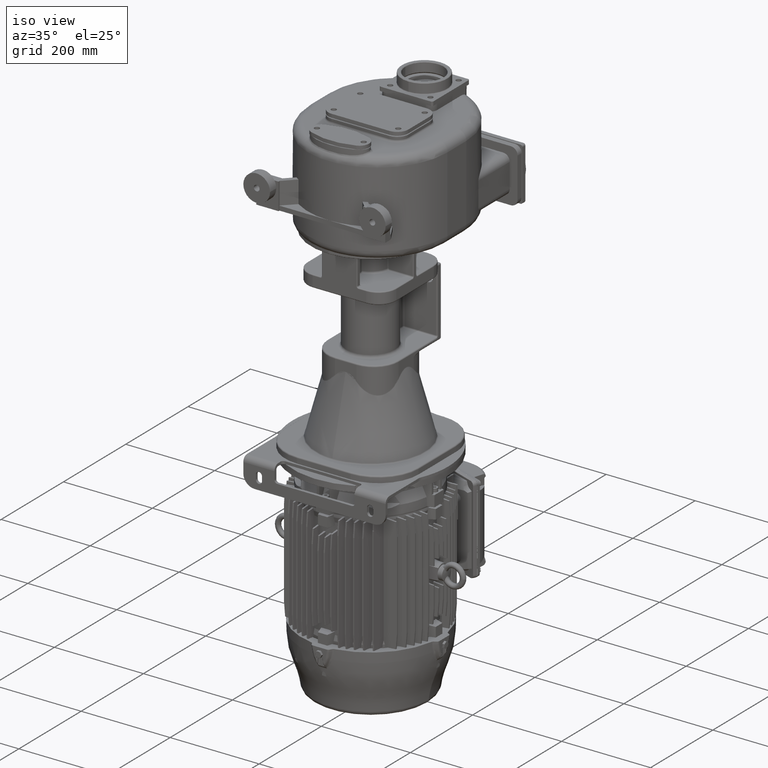
[diagram: clean part render]
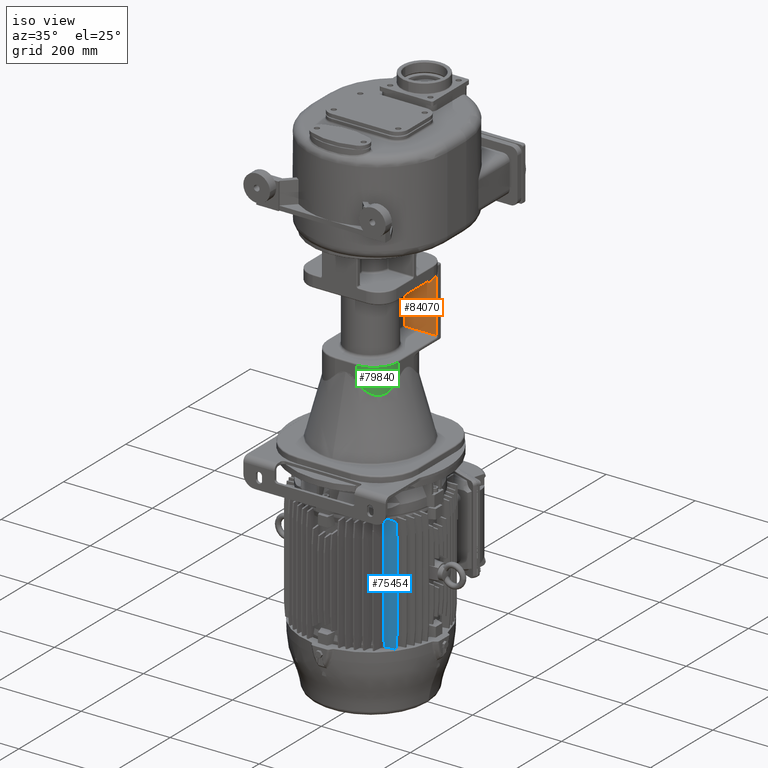
[diagram: same view with three faces highlighted in distinct colors, each labeled with its STEP entity id]
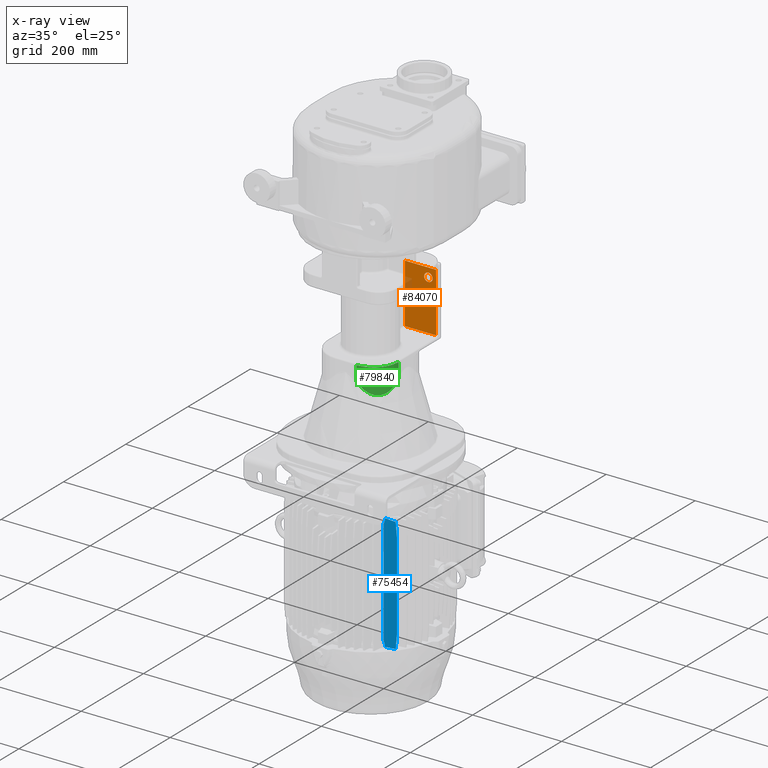
[diagram: x-ray of the same camera — body ghosted, the three highlighted faces saturated]
A machine part, iso view with three faces highlighted in distinct colors.
The next image is the same camera in x-ray (body ghosted, the three faces saturated) — at least one of them is partly hidden behind the body in this view.
Their STEP definitions:

[orange] entity #84070 — the highlighted planar face has unit normal (0, 1, 0).
#26449=DIRECTION('',(0.E0,0.E0,1.E0));
#26450=VECTOR('',#26449,1.33E2);
#26451=CARTESIAN_POINT('',(7.E0,2.58E2,-3.505E2));
#26452=LINE('',#26451,#26450);
#26453=DIRECTION('',(-1.E0,0.E0,0.E0));
#26454=VECTOR('',#26453,7.E1);
#26455=CARTESIAN_POINT('',(7.7E1,2.58E2,-2.175E2));
#26456=LINE('',#26455,#26454);
#26457=DIRECTION('',(0.E0,0.E0,1.E0));
#26458=VECTOR('',#26457,1.33E2);
#26459=CARTESIAN_POINT('',(7.7E1,2.58E2,-3.505E2));
#26460=LINE('',#26459,#26458);
#26461=DIRECTION('',(1.E0,0.E0,0.E0));
#26462=VECTOR('',#26461,7.E1);
#26463=CARTESIAN_POINT('',(7.E0,2.58E2,-3.505E2));
#26464=LINE('',#26463,#26462);
#26465=CARTESIAN_POINT('',(6.E1,2.58E2,-2.375E2));
#26466=DIRECTION('',(0.E0,1.E0,0.E0));
#26467=DIRECTION('',(0.E0,0.E0,1.E0));
#26468=AXIS2_PLACEMENT_3D('',#26465,#26466,#26467);
#26470=CARTESIAN_POINT('',(6.E1,2.58E2,-2.375E2));
#26471=DIRECTION('',(0.E0,1.E0,0.E0));
#26472=DIRECTION('',(0.E0,0.E0,-1.E0));
#26473=AXIS2_PLACEMENT_3D('',#26470,#26471,#26472);
#46279=CARTESIAN_POINT('',(7.7E1,2.58E2,-3.505E2));
#46280=CARTESIAN_POINT('',(7.7E1,2.58E2,-2.175E2));
#46281=VERTEX_POINT('',#46279);
#46282=VERTEX_POINT('',#46280);
#46287=CARTESIAN_POINT('',(7.E0,2.58E2,-3.505E2));
#46288=CARTESIAN_POINT('',(7.E0,2.58E2,-2.175E2));
#46289=VERTEX_POINT('',#46287);
#46290=VERTEX_POINT('',#46288);
#46306=CARTESIAN_POINT('',(6.E1,2.58E2,-2.28E2));
#46307=CARTESIAN_POINT('',(6.E1,2.58E2,-2.47E2));
#46308=VERTEX_POINT('',#46306);
#46309=VERTEX_POINT('',#46307);
#84051=CARTESIAN_POINT('',(0.E0,2.58E2,-2.85E2));
#84052=DIRECTION('',(0.E0,1.E0,0.E0));
#84053=DIRECTION('',(0.E0,0.E0,-1.E0));
#84054=AXIS2_PLACEMENT_3D('',#84051,#84052,#84053);
#84055=PLANE('',#84054);
#84057=ORIENTED_EDGE('',*,*,#84056,.T.);
#84058=ORIENTED_EDGE('',*,*,#84019,.F.);
#84059=ORIENTED_EDGE('',*,*,#84042,.F.);
#84061=ORIENTED_EDGE('',*,*,#84060,.F.);
#84062=EDGE_LOOP('',(#84057,#84058,#84059,#84061));
#84063=FACE_OUTER_BOUND('',#84062,.F.);
#84065=ORIENTED_EDGE('',*,*,#84064,.F.);
#84067=ORIENTED_EDGE('',*,*,#84066,.F.);
#84068=EDGE_LOOP('',(#84065,#84067));
#84069=FACE_BOUND('',#84068,.F.);
#84070=ADVANCED_FACE('',(#84063,#84069),#84055,.F.);
#26469=CIRCLE('',#26468,9.5E0);
#26474=CIRCLE('',#26473,9.5E0);
#84019=EDGE_CURVE('',#46282,#46290,#26456,.T.);
#84042=EDGE_CURVE('',#46281,#46282,#26460,.T.);
#84056=EDGE_CURVE('',#46289,#46290,#26452,.T.);
#84060=EDGE_CURVE('',#46289,#46281,#26464,.T.);
#84064=EDGE_CURVE('',#46308,#46309,#26469,.T.);
#84066=EDGE_CURVE('',#46309,#46308,#26474,.T.);

[blue] entity #75454 — the highlighted planar face has unit normal (-0.0349, 0.9994, 0).
#11636=DIRECTION('',(0.E0,0.E0,1.E0));
#11637=VECTOR('',#11636,5.080310671574E0);
#11638=CARTESIAN_POINT('',(1.004191494949E2,6.045004144170E1,
-9.020375340094E2));
#11639=LINE('',#11638,#11637);
#20480=DIRECTION('',(-2.513375605311E-7,1.209644318652E-9,-1.E0));
#20481=VECTOR('',#20480,1.979581359303E2);
#20482=CARTESIAN_POINT('',(1.269921170745E2,6.137798794041E1,
-6.723217776635E2));
#20483=LINE('',#20482,#20481);
#20484=DIRECTION('',(0.E0,0.E0,-1.E0));
#20485=VECTOR('',#20484,2.370833117139E2);
#20486=CARTESIAN_POINT('',(9.764677210992E1,6.035322789008E1,
-6.527583441431E2));
#20487=LINE('',#20486,#20485);
#20506=CARTESIAN_POINT('',(1.243223132301E2,6.128475633095E1,
-9.005054819032E2));
#20507=CARTESIAN_POINT('',(1.235420267702E2,6.125750812734E1,
-9.005578999955E2));
#20508=CARTESIAN_POINT('',(1.219931910742E2,6.120342449447E1,
-9.006615198399E2));
#20509=CARTESIAN_POINT('',(1.197107199506E2,6.112371768032E1,
-9.008129970900E2));
#20510=CARTESIAN_POINT('',(1.174530705961E2,6.104487914009E1,
-9.009615692846E2));
#20511=CARTESIAN_POINT('',(1.152289489841E2,6.096721101822E1,
-9.011066744062E2));
#20512=CARTESIAN_POINT('',(1.130362048048E2,6.089063872661E1,
-9.012484672218E2));
#20513=CARTESIAN_POINT('',(1.108725080514E2,6.081508076502E1,
-9.013871096910E2));
#20514=CARTESIAN_POINT('',(1.087355900686E2,6.074045794633E1,
-9.015227554065E2));
#20515=CARTESIAN_POINT('',(1.066258684437E2,6.066678484333E1,
-9.016553854013E2));
#20516=CARTESIAN_POINT('',(1.045397084806E2,6.059393453225E1,
-9.017852373023E2));
#20517=CARTESIAN_POINT('',(1.024647245782E2,6.052147449766E1,
-9.019130707425E2));
#20518=CARTESIAN_POINT('',(1.010986747057E2,6.047377098495E1,
-9.019963377676E2));
#20519=CARTESIAN_POINT('',(1.004191494949E2,6.045004144170E1,
-9.020375340094E2));
#20532=CARTESIAN_POINT('',(1.269920673202E2,6.137798817986E1,
-8.702799135938E2));
#20533=CARTESIAN_POINT('',(1.266929118332E2,6.136754144006E1,
-8.736510831647E2));
#20534=CARTESIAN_POINT('',(1.260963338595E2,6.134670821392E1,
-8.803844436196E2));
#20535=CARTESIAN_POINT('',(1.252100192194E2,6.131575861372E1,
-8.904199192348E2));
#20536=CARTESIAN_POINT('',(1.246179743004E2,6.129508104303E1,
-8.971424364297E2));
#20537=CARTESIAN_POINT('',(1.243223132301E2,6.128475633095E1,
-9.005054819032E2));
#20544=CARTESIAN_POINT('',(1.269920673202E2,6.137798817986E1,
-8.702799135938E2));
#20546=CARTESIAN_POINT('',(1.004191494949E2,6.045004144170E1,
-8.969572233378E2));
#20547=CARTESIAN_POINT('',(1.001077360108E2,6.043916664320E1,
-8.961518723362E2));
#20548=CARTESIAN_POINT('',(9.948714668400E1,6.041749518637E1,
-8.945509985209E2));
#20549=CARTESIAN_POINT('',(9.856308225311E1,6.038522614538E1,
-8.921793493553E2));
#20550=CARTESIAN_POINT('',(9.795146006698E1,6.036386782800E1,
-8.906176363570E2));
#20551=CARTESIAN_POINT('',(9.764677210992E1,6.035322789008E1,
-8.898416558569E2));
#20558=CARTESIAN_POINT('',(9.764677210992E1,6.035322789008E1,
-8.898416558569E2));
#37629=DIRECTION('',(0.E0,0.E0,1.E0));
#37630=VECTOR('',#37629,5.080310671573E0);
#37631=CARTESIAN_POINT('',(1.004191494949E2,6.045004144170E1,
-6.456427766622E2));
#37632=LINE('',#37631,#37630);
#38047=CARTESIAN_POINT('',(1.004191494949E2,6.045004144170E1,
-6.405624659906E2));
#38048=CARTESIAN_POINT('',(1.010986794162E2,6.047377114944E1,
-6.406036625179E2));
#38049=CARTESIAN_POINT('',(1.024647388118E2,6.052147499471E1,
-6.406869301266E2));
#38050=CARTESIAN_POINT('',(1.045397373346E2,6.059393553982E1,
-6.408147644814E2));
#38051=CARTESIAN_POINT('',(1.066259121625E2,6.066678637015E1,
-6.409446173310E2));
#38052=CARTESIAN_POINT('',(1.087356489406E2,6.074046000170E1,
-6.410772483081E2));
#38053=CARTESIAN_POINT('',(1.108725824437E2,6.081508336464E1,
-6.412128950563E2));
#38054=CARTESIAN_POINT('',(1.130362953395E2,6.089064188148E1,
-6.413515385819E2));
#38055=CARTESIAN_POINT('',(1.152290552846E2,6.096721475522E1,
-6.414933325752E2));
#38056=CARTESIAN_POINT('',(1.174531962678E2,6.104488343570E1,
-6.416384386487E2));
#38057=CARTESIAN_POINT('',(1.197108539219E2,6.112372270556E1,
-6.417870128791E2));
#38058=CARTESIAN_POINT('',(1.219933772548E2,6.120342970158E1,
-6.419384883757E2));
#38059=CARTESIAN_POINT('',(1.235421398055E2,6.125751486380E1,
-6.420421166218E2));
#38060=CARTESIAN_POINT('',(1.243224325430E2,6.128476328663E1,
-6.420945351676E2));
#38084=CARTESIAN_POINT('',(1.243224325430E2,6.128476328663E1,
-6.420945351676E2));
#38085=CARTESIAN_POINT('',(1.246223057153E2,6.129523508856E1,
-6.455054919478E2));
#38086=CARTESIAN_POINT('',(1.252197924716E2,6.131609833799E1,
-6.522917069030E2));
#38087=CARTESIAN_POINT('',(1.261039002557E2,6.134697373275E1,
-6.623003245461E2));
#38088=CARTESIAN_POINT('',(1.266961139011E2,6.136765128182E1,
-6.689861331787E2));
#38089=CARTESIAN_POINT('',(1.269921170745E2,6.137798794041E1,
-6.723217776635E2));
#38098=CARTESIAN_POINT('',(1.269921170745E2,6.137798794041E1,
-6.723217776635E2));
#38105=CARTESIAN_POINT('',(9.764677210992E1,6.035322789008E1,
-6.527583441431E2));
#38106=CARTESIAN_POINT('',(9.795146202339E1,6.036386789632E1,
-6.519823586604E2));
#38107=CARTESIAN_POINT('',(9.856308680085E1,6.038522630419E1,
-6.504206390109E2));
#38108=CARTESIAN_POINT('',(9.948715123415E1,6.041749534526E1,
-6.480489897625E2));
#38109=CARTESIAN_POINT('',(1.001077379537E2,6.043916671105E1,
-6.464481226392E2));
#38110=CARTESIAN_POINT('',(1.004191494949E2,6.045004144170E1,
-6.456427766622E2));
#38117=CARTESIAN_POINT('',(9.764677210992E1,6.035322789008E1,
-6.527583441431E2));
#49433=CARTESIAN_POINT('',(1.004191494949E2,6.045004144170E1,
-6.405624659906E2));
#49435=VERTEX_POINT('',#49433);
#49452=CARTESIAN_POINT('',(1.004191494949E2,6.045004144170E1,
-6.456427766622E2));
#49453=VERTEX_POINT('',#49452);
#50117=CARTESIAN_POINT('',(1.243223132301E2,6.128475633095E1,
-9.005054819032E2));
#50119=VERTEX_POINT('',#50117);
#50120=VERTEX_POINT('',#20519);
#50309=VERTEX_POINT('',#38098);
#50314=VERTEX_POINT('',#20544);
#50378=VERTEX_POINT('',#38117);
#50379=VERTEX_POINT('',#20558);
#50386=CARTESIAN_POINT('',(1.004191494949E2,6.045004144170E1,
-8.969572233378E2));
#50387=VERTEX_POINT('',#50386);
#50955=VERTEX_POINT('',#38060);
#75429=CARTESIAN_POINT('',(1.269920673202E2,6.137798817986E1,-9.023E2));
#75430=DIRECTION('',(-3.489949670501E-2,9.993908270190E-1,0.E0));
#75431=DIRECTION('',(9.993908270190E-1,3.489949670501E-2,0.E0));
#75432=AXIS2_PLACEMENT_3D('',#75429,#75430,#75431);
#75433=PLANE('',#75432);
#75435=ORIENTED_EDGE('',*,*,#75434,.T.);
#75436=ORIENTED_EDGE('',*,*,#65704,.T.);
#75438=ORIENTED_EDGE('',*,*,#75437,.T.);
#75440=ORIENTED_EDGE('',*,*,#75439,.F.);
#75442=ORIENTED_EDGE('',*,*,#75441,.T.);
#75444=ORIENTED_EDGE('',*,*,#75443,.T.);
#75446=ORIENTED_EDGE('',*,*,#75445,.T.);
#75448=ORIENTED_EDGE('',*,*,#75447,.T.);
#75449=ORIENTED_EDGE('',*,*,#75419,.T.);
#75451=ORIENTED_EDGE('',*,*,#75450,.T.);
#75452=EDGE_LOOP('',(#75435,#75436,#75438,#75440,#75442,#75444,#75446,#75448,
#75449,#75451));
#75453=FACE_OUTER_BOUND('',#75452,.F.);
#75454=ADVANCED_FACE('',(#75453),#75433,.F.);
#20520=B_SPLINE_CURVE_WITH_KNOTS('',3,(#20506,#20507,#20508,#20509,#20510,
#20511,#20512,#20513,#20514,#20515,#20516,#20517,#20518,#20519),.UNSPECIFIED.,
.F.,.F.,(4,1,1,1,1,1,1,1,1,1,1,4),(0.E0,9.090909090909E-2,1.818181818182E-1,
2.727272727273E-1,3.636363636364E-1,4.545454545455E-1,5.454545454545E-1,
6.363636363636E-1,7.272727272727E-1,8.181818181818E-1,9.090909090909E-1,1.E0),
.UNSPECIFIED.);
#20538=B_SPLINE_CURVE_WITH_KNOTS('',3,(#20532,#20533,#20534,#20535,#20536,
#20537),.UNSPECIFIED.,.F.,.F.,(4,1,1,4),(0.E0,3.333333333333E-1,
6.666666666667E-1,1.E0),.UNSPECIFIED.);
#20552=B_SPLINE_CURVE_WITH_KNOTS('',3,(#20546,#20547,#20548,#20549,#20550,
#20551),.UNSPECIFIED.,.F.,.F.,(4,1,1,4),(0.E0,3.333333333333E-1,
6.666666666667E-1,1.E0),.UNSPECIFIED.);
#38061=B_SPLINE_CURVE_WITH_KNOTS('',3,(#38047,#38048,#38049,#38050,#38051,
#38052,#38053,#38054,#38055,#38056,#38057,#38058,#38059,#38060),.UNSPECIFIED.,
.F.,.F.,(4,1,1,1,1,1,1,1,1,1,1,4),(0.E0,9.090909090909E-2,1.818181818182E-1,
2.727272727273E-1,3.636363636364E-1,4.545454545455E-1,5.454545454545E-1,
6.363636363636E-1,7.272727272727E-1,8.181818181818E-1,9.090909090909E-1,1.E0),
.UNSPECIFIED.);
#38090=B_SPLINE_CURVE_WITH_KNOTS('',3,(#38084,#38085,#38086,#38087,#38088,
#38089),.UNSPECIFIED.,.F.,.F.,(4,1,1,4),(0.E0,3.333333333333E-1,
6.666666666667E-1,1.E0),.UNSPECIFIED.);
#38111=B_SPLINE_CURVE_WITH_KNOTS('',3,(#38105,#38106,#38107,#38108,#38109,
#38110),.UNSPECIFIED.,.F.,.F.,(4,1,1,4),(0.E0,3.333333333333E-1,
6.666666666667E-1,1.E0),.UNSPECIFIED.);
#65704=EDGE_CURVE('',#50120,#50387,#11639,.T.);
#75419=EDGE_CURVE('',#50309,#50314,#20483,.T.);
#75434=EDGE_CURVE('',#50119,#50120,#20520,.T.);
#75437=EDGE_CURVE('',#50387,#50379,#20552,.T.);
#75439=EDGE_CURVE('',#50378,#50379,#20487,.T.);
#75441=EDGE_CURVE('',#50378,#49453,#38111,.T.);
#75443=EDGE_CURVE('',#49453,#49435,#37632,.T.);
#75445=EDGE_CURVE('',#49435,#50955,#38061,.T.);
#75447=EDGE_CURVE('',#50955,#50309,#38090,.T.);
#75450=EDGE_CURVE('',#50314,#50119,#20538,.T.);

[green] entity #79840 — the highlighted cylindrical surface (edge-blend (fillet) strip) has radius 56 mm, axis along (0, 0, -1).
#24755=CARTESIAN_POINT('',(2.4E1,7.800000000028E1,-3.892634744463E2));
#24835=CARTESIAN_POINT('',(7.999999999973E1,1.34E2,-3.892634744463E2));
#24836=CARTESIAN_POINT('',(7.999999999128E1,1.335875284986E2,
-3.897139818068E2));
#24837=CARTESIAN_POINT('',(7.999088168343E1,1.327679302245E2,
-3.905973116488E2));
#24838=CARTESIAN_POINT('',(7.995097251464E1,1.315562509317E2,
-3.918692971089E2));
#24839=CARTESIAN_POINT('',(7.988591190040E1,1.303619771320E2,
-3.930903963824E2));
#24840=CARTESIAN_POINT('',(7.979676286353E1,1.291855562801E2,
-3.942618400901E2));
#24841=CARTESIAN_POINT('',(7.968456608164E1,1.280271904759E2,
-3.953850581849E2));
#24842=CARTESIAN_POINT('',(7.955031512908E1,1.268869151220E2,
-3.964615671183E2));
#24843=CARTESIAN_POINT('',(7.939498299083E1,1.257648400846E2,
-3.974927420424E2));
#24844=CARTESIAN_POINT('',(7.921950047703E1,1.246609589709E2,
-3.984800009017E2));
#24845=CARTESIAN_POINT('',(7.902476653748E1,1.235752558625E2,
-3.994247032348E2));
#24846=CARTESIAN_POINT('',(7.881164327165E1,1.225076688490E2,
-4.003281861360E2));
#24847=CARTESIAN_POINT('',(7.858095668333E1,1.214581041557E2,
-4.011917522743E2));
#24848=CARTESIAN_POINT('',(7.833349574356E1,1.204264348028E2,
-4.020166723325E2));
#24849=CARTESIAN_POINT('',(7.807001204531E1,1.194125036614E2,
-4.028041833312E2));
#24850=CARTESIAN_POINT('',(7.779122028087E1,1.184161282338E2,
-4.035554859273E2));
#24851=CARTESIAN_POINT('',(7.749779804363E1,1.174371019943E2,
-4.042717445361E2));
#24852=CARTESIAN_POINT('',(7.719038621937E1,1.164751975307E2,
-4.049540860740E2));
#24853=CARTESIAN_POINT('',(7.686958929720E1,1.155301687720E2,
-4.056035994844E2));
#24854=CARTESIAN_POINT('',(7.653597573404E1,1.146017530659E2,
-4.062213355031E2));
#24855=CARTESIAN_POINT('',(7.619007847548E1,1.136896733836E2,
-4.068083062474E2));
#24856=CARTESIAN_POINT('',(7.583239553336E1,1.127936403613E2,
-4.073654849759E2));
#24857=CARTESIAN_POINT('',(7.546339062434E1,1.119133542299E2,
-4.078938059415E2));
#24858=CARTESIAN_POINT('',(7.508349383123E1,1.110485065787E2,
-4.083941643628E2));
#24859=CARTESIAN_POINT('',(7.469310244246E1,1.101987823201E2,
-4.088674163056E2));
#24860=CARTESIAN_POINT('',(7.429258174774E1,1.093638613265E2,
-4.093143788558E2));
#24861=CARTESIAN_POINT('',(7.388226572382E1,1.085434197063E2,
-4.097358303902E2));
#24862=CARTESIAN_POINT('',(7.346245787310E1,1.077371312968E2,
-4.101325107356E2));
#24863=CARTESIAN_POINT('',(7.303343205295E1,1.069446690118E2,
-4.105051214014E2));
#24864=CARTESIAN_POINT('',(7.259543331256E1,1.061657061045E2,
-4.108543258593E2));
#24865=CARTESIAN_POINT('',(7.214867867391E1,1.053999172575E2,
-4.111807498626E2));
#24866=CARTESIAN_POINT('',(7.169335816469E1,1.046469800269E2,
-4.114849816872E2));
#24867=CARTESIAN_POINT('',(7.122963556983E1,1.039065757142E2,
-4.117675726544E2));
#24868=CARTESIAN_POINT('',(7.075764920488E1,1.031783902567E2,
-4.120290374104E2));
#24869=CARTESIAN_POINT('',(7.027751263782E1,1.024621150166E2,
-4.122698543390E2));
#24870=CARTESIAN_POINT('',(6.978931554795E1,1.017574477585E2,
-4.124904658491E2));
#24871=CARTESIAN_POINT('',(6.929312459800E1,1.010640935872E2,
-4.126912786948E2));
#24872=CARTESIAN_POINT('',(6.878898398005E1,1.003817654169E2,
-4.128726643767E2));
#24873=CARTESIAN_POINT('',(6.827691650070E1,9.971018516787E1,
-4.130349594700E2));
#24874=CARTESIAN_POINT('',(6.775692394212E1,9.904908396078E1,
-4.131784660747E2));
#24875=CARTESIAN_POINT('',(6.722898793373E1,9.839820301812E1,
-4.133034519088E2));
#24876=CARTESIAN_POINT('',(6.669307057795E1,9.775729422281E1,
-4.134101506130E2));
#24877=CARTESIAN_POINT('',(6.614911508094E1,9.712612070035E1,
-4.134987619801E2));
#24878=CARTESIAN_POINT('',(6.559704644975E1,9.650445747998E1,
-4.135694521442E2));
#24879=CARTESIAN_POINT('',(6.503677206887E1,9.589209201821E1,
-4.136223537453E2));
#24880=CARTESIAN_POINT('',(6.446818226130E1,9.528882472402E1,
-4.136575662778E2));
#24881=CARTESIAN_POINT('',(6.389115095032E1,9.469446960055E1,
-4.136751560320E2));
#24882=CARTESIAN_POINT('',(6.330553619837E1,9.410885476205E1,
-4.136751561180E2));
#24883=CARTESIAN_POINT('',(6.271118089738E1,9.353182311282E1,
-4.136575665294E2));
#24884=CARTESIAN_POINT('',(6.210791325359E1,9.296323282158E1,
-4.136223541336E2));
#24885=CARTESIAN_POINT('',(6.149554722831E1,9.240295778878E1,
-4.135694526206E2));
#24886=CARTESIAN_POINT('',(6.087388350878E1,9.185088859658E1,
-4.134987625218E2));
#24887=CARTESIAN_POINT('',(6.024270947812E1,9.130693255922E1,
-4.134101511862E2));
#24888=CARTESIAN_POINT('',(5.960180022507E1,9.077101473325E1,
-4.133034524932E2));
#24889=CARTESIAN_POINT('',(5.895091883356E1,9.024307828572E1,
-4.131784666513E2));
#24890=CARTESIAN_POINT('',(5.828981712145E1,8.972308526777E1,
-4.130349599999E2));
#24891=CARTESIAN_POINT('',(5.761823635232E1,8.921101734401E1,
-4.128726648289E2));
#24892=CARTESIAN_POINT('',(5.693590774372E1,8.870687636640E1,
-4.126912790690E2));
#24893=CARTESIAN_POINT('',(5.624255314226E1,8.821068508312E1,
-4.124904661228E2));
#24894=CARTESIAN_POINT('',(5.553788548170E1,8.772248769859E1,
-4.122698545041E2));
#24895=CARTESIAN_POINT('',(5.482160978475E1,8.724235081890E1,
-4.120290374288E2));
#24896=CARTESIAN_POINT('',(5.409342386354E1,8.677036415799E1,
-4.117675725013E2));
#24897=CARTESIAN_POINT('',(5.335301914546E1,8.630664132319E1,
-4.114849813649E2));
#24898=CARTESIAN_POINT('',(5.260008152016E1,8.585132059727E1,
-4.111807493583E2));
#24899=CARTESIAN_POINT('',(5.183429226766E1,8.540456575223E1,
-4.108543251499E2));
#24900=CARTESIAN_POINT('',(5.105532893682E1,8.496656681241E1,
-4.105051204626E2));
#24901=CARTESIAN_POINT('',(5.026286626319E1,8.453754082903E1,
-4.101325095640E2));
#24902=CARTESIAN_POINT('',(4.945657752828E1,8.411773286300E1,
-4.097358290015E2));
#24903=CARTESIAN_POINT('',(4.863613561755E1,8.370741675351E1,
-4.093143772547E2));
#24904=CARTESIAN_POINT('',(4.780121434785E1,8.330689599150E1,
-4.088674144873E2));
#24905=CARTESIAN_POINT('',(4.695148985552E1,8.291650456548E1,
-4.083941623395E2));
#24906=CARTESIAN_POINT('',(4.608664202726E1,8.253660776851E1,
-4.078938037364E2));
#24907=CARTESIAN_POINT('',(4.520635576588E1,8.216760288159E1,
-4.073654826101E2));
#24908=CARTESIAN_POINT('',(4.431032264977E1,8.180991998061E1,
-4.068083037380E2));
#24909=CARTESIAN_POINT('',(4.339824293055E1,8.146402278777E1,
-4.062213328827E2));
#24910=CARTESIAN_POINT('',(4.246982722568E1,8.113040930485E1,
-4.056035967772E2));
#24911=CARTESIAN_POINT('',(4.152479848940E1,8.080961246977E1,
-4.049540832941E2));
#24912=CARTESIAN_POINT('',(4.056289410078E1,8.050220074842E1,
-4.042717417215E2));
#24913=CARTESIAN_POINT('',(3.958386803895E1,8.020877864080E1,
-4.035554831570E2));
#24914=CARTESIAN_POINT('',(3.858749281368E1,7.992998700514E1,
-4.028041806318E2));
#24915=CARTESIAN_POINT('',(3.757356187304E1,7.966650342758E1,
-4.020166697103E2));
#24916=CARTESIAN_POINT('',(3.654189281243E1,7.941904262271E1,
-4.011917498118E2));
#24917=CARTESIAN_POINT('',(3.549232860093E1,7.918835619732E1,
-4.003281840038E2));
#24918=CARTESIAN_POINT('',(3.442474203347E1,7.897523306579E1,
-3.994247014267E2));
#24919=CARTESIAN_POINT('',(3.333903899994E1,7.878049917947E1,
-3.984799991121E2));
#24920=CARTESIAN_POINT('',(3.223515784198E1,7.860501670118E1,
-3.974927401618E2));
#24921=CARTESIAN_POINT('',(3.111308287446E1,7.844968461447E1,
-3.964615652525E2));
#24922=CARTESIAN_POINT('',(2.997280742796E1,7.831543369263E1,
-3.953850561796E2));
#24923=CARTESIAN_POINT('',(2.881444150331E1,7.820323694448E1,
-3.942618379133E2));
#24924=CARTESIAN_POINT('',(2.763802074636E1,7.811408796498E1,
-3.930903942367E2));
#24925=CARTESIAN_POINT('',(2.644374767041E1,7.804902742867E1,
-3.918692956554E2));
#24926=CARTESIAN_POINT('',(2.523206885807E1,7.800911830141E1,
-3.905973106661E2));
#24927=CARTESIAN_POINT('',(2.441247117491E1,7.800000000725E1,
-3.897139814522E2));
#24928=CARTESIAN_POINT('',(2.4E1,7.800000000028E1,-3.892634744463E2));
#24930=DIRECTION('',(0.E0,-8.527343586797E-12,1.E0));
#24931=VECTOR('',#24930,3.276347444630E1);
#24932=CARTESIAN_POINT('',(2.4E1,7.800000000028E1,-3.892634744463E2));
#24933=LINE('',#24932,#24931);
#24934=CARTESIAN_POINT('',(2.4E1,1.34E2,-3.565E2));
#24935=DIRECTION('',(0.E0,0.E0,1.E0));
#24936=DIRECTION('',(0.E0,-1.E0,0.E0));
#24937=AXIS2_PLACEMENT_3D('',#24934,#24935,#24936);
#25008=CARTESIAN_POINT('',(7.999999999973E1,1.34E2,-3.892634744463E2));
#25010=DIRECTION('',(8.282713791123E-12,0.E0,1.E0));
#25011=VECTOR('',#25010,3.276347444630E1);
#25012=CARTESIAN_POINT('',(7.999999999973E1,1.34E2,-3.892634744463E2));
#25013=LINE('',#25012,#25011);
#46094=CARTESIAN_POINT('',(2.4E1,7.8E1,-3.565E2));
#46095=CARTESIAN_POINT('',(8.E1,1.34E2,-3.565E2));
#46096=VERTEX_POINT('',#46094);
#46097=VERTEX_POINT('',#46095);
#46353=VERTEX_POINT('',#25008);
#46356=VERTEX_POINT('',#24755);
#79826=CARTESIAN_POINT('',(2.4E1,1.34E2,-3.705E2));
#79827=DIRECTION('',(0.E0,0.E0,-1.E0));
#79828=DIRECTION('',(1.E0,0.E0,0.E0));
#79829=AXIS2_PLACEMENT_3D('',#79826,#79827,#79828);
#79830=CYLINDRICAL_SURFACE('',#79829,5.6E1);
#79832=ORIENTED_EDGE('',*,*,#79831,.F.);
#79834=ORIENTED_EDGE('',*,*,#79833,.T.);
#79835=ORIENTED_EDGE('',*,*,#79814,.T.);
#79837=ORIENTED_EDGE('',*,*,#79836,.T.);
#79838=EDGE_LOOP('',(#79832,#79834,#79835,#79837));
#79839=FACE_OUTER_BOUND('',#79838,.F.);
#79840=ADVANCED_FACE('',(#79839),#79830,.T.);
#24929=B_SPLINE_CURVE_WITH_KNOTS('',3,(#24835,#24836,#24837,#24838,#24839,
#24840,#24841,#24842,#24843,#24844,#24845,#24846,#24847,#24848,#24849,#24850,
#24851,#24852,#24853,#24854,#24855,#24856,#24857,#24858,#24859,#24860,#24861,
#24862,#24863,#24864,#24865,#24866,#24867,#24868,#24869,#24870,#24871,#24872,
#24873,#24874,#24875,#24876,#24877,#24878,#24879,#24880,#24881,#24882,#24883,
#24884,#24885,#24886,#24887,#24888,#24889,#24890,#24891,#24892,#24893,#24894,
#24895,#24896,#24897,#24898,#24899,#24900,#24901,#24902,#24903,#24904,#24905,
#24906,#24907,#24908,#24909,#24910,#24911,#24912,#24913,#24914,#24915,#24916,
#24917,#24918,#24919,#24920,#24921,#24922,#24923,#24924,#24925,#24926,#24927,
#24928),.UNSPECIFIED.,.F.,.F.,(4,1,1,1,1,1,1,1,1,1,1,1,1,1,1,1,1,1,1,1,1,1,1,1,
1,1,1,1,1,1,1,1,1,1,1,1,1,1,1,1,1,1,1,1,1,1,1,1,1,1,1,1,1,1,1,1,1,1,1,1,1,1,1,1,
1,1,1,1,1,1,1,1,1,1,1,1,1,1,1,1,1,1,1,1,1,1,1,1,1,1,1,4),(0.E0,
1.098901098901E-2,2.197802197802E-2,3.296703296703E-2,4.395604395604E-2,
5.494505494505E-2,6.593406593407E-2,7.692307692308E-2,8.791208791209E-2,
9.890109890110E-2,1.098901098901E-1,1.208791208791E-1,1.318681318681E-1,
1.428571428571E-1,1.538461538462E-1,1.648351648352E-1,1.758241758242E-1,
1.868131868132E-1,1.978021978022E-1,2.087912087912E-1,2.197802197802E-1,
2.307692307692E-1,2.417582417582E-1,2.527472527473E-1,2.637362637363E-1,
2.747252747253E-1,2.857142857143E-1,2.967032967033E-1,3.076923076923E-1,
3.186813186813E-1,3.296703296703E-1,3.406593406593E-1,3.516483516484E-1,
3.626373626374E-1,3.736263736264E-1,3.846153846154E-1,3.956043956044E-1,
4.065934065934E-1,4.175824175824E-1,4.285714285714E-1,4.395604395604E-1,
4.505494505495E-1,4.615384615385E-1,4.725274725275E-1,4.835164835165E-1,
4.945054945055E-1,5.054945054945E-1,5.164835164835E-1,5.274725274725E-1,
5.384615384615E-1,5.494505494505E-1,5.604395604396E-1,5.714285714286E-1,
5.824175824176E-1,5.934065934066E-1,6.043956043956E-1,6.153846153846E-1,
6.263736263736E-1,6.373626373626E-1,6.483516483516E-1,6.593406593407E-1,
6.703296703297E-1,6.813186813187E-1,6.923076923077E-1,7.032967032967E-1,
7.142857142857E-1,7.252747252747E-1,7.362637362637E-1,7.472527472527E-1,
7.582417582418E-1,7.692307692308E-1,7.802197802198E-1,7.912087912088E-1,
8.021978021978E-1,8.131868131868E-1,8.241758241758E-1,8.351648351648E-1,
8.461538461538E-1,8.571428571429E-1,8.681318681319E-1,8.791208791209E-1,
8.901098901099E-1,9.010989010989E-1,9.120879120879E-1,9.230769230769E-1,
9.340659340659E-1,9.450549450549E-1,9.560439560440E-1,9.670329670330E-1,
9.780219780220E-1,9.890109890110E-1,1.E0),.UNSPECIFIED.);
#24938=CIRCLE('',#24937,5.6E1);
#79814=EDGE_CURVE('',#46356,#46096,#24933,.T.);
#79831=EDGE_CURVE('',#46353,#46097,#25013,.T.);
#79833=EDGE_CURVE('',#46353,#46356,#24929,.T.);
#79836=EDGE_CURVE('',#46096,#46097,#24938,.T.);